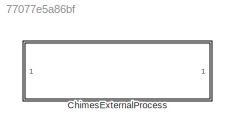
MODEL slx_77077e5a86bf
KIND library
CONFIG AbsTol = auto
CONFIG EnableMultiTasking = off
CONFIG FixedStep = auto
CONFIG MaxStep = auto
CONFIG MinStep = auto
CONFIG RelTol = 1e-3
CONFIG SampleTimeConstraint = Unconstrained
CONFIG SolverName = VariableStepAuto
CONFIG StartTime = 0.0
CONFIG StopTime = 10.0
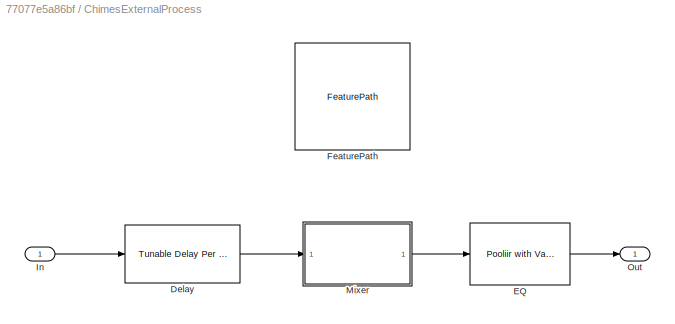
BLOCK [SubSystem] ChimesExternalProcess
BLOCK [Reference] ChimesExternalProcess/Delay  REF=TunableDelay/Tunable Delay Per Channel
  SourceBlock = TunableDelay/Tunable Delay Per Channel
  SourceType = Tunable Delay
BLOCK [Reference] ChimesExternalProcess/EQ  REF=PooliirAccel/Pooliir with Variants
  SourceBlock = PooliirAccel/Pooliir with Variants
  SourceType = Bose Pool IIR
BLOCK [Reference] ChimesExternalProcess/FeaturePath  REF=FeaturePath/FeaturePath
  SourceBlock = FeaturePath/FeaturePath
  SourceType = Bose Feature Path
BLOCK [Inport] ChimesExternalProcess/In
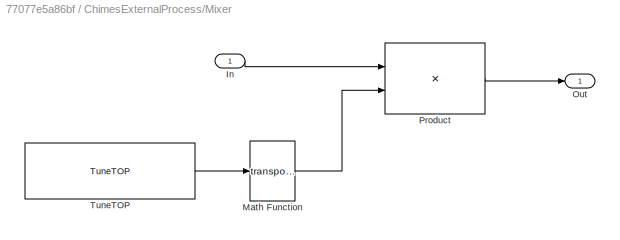
BLOCK [SubSystem] ChimesExternalProcess/Mixer
BLOCK [Inport] ChimesExternalProcess/Mixer/In
BLOCK [Math] ChimesExternalProcess/Mixer/Math Function
  Operator = transpose
  SignedPower = on
BLOCK [Outport] ChimesExternalProcess/Mixer/Out
BLOCK [Product] ChimesExternalProcess/Mixer/Product
  Multiplication = Matrix(*)
BLOCK [Reference] ChimesExternalProcess/Mixer/TuneTOP  REF=TuneVar/TuneTOP
  SourceBlock = TuneVar/TuneTOP
  SourceType = Bose Trivial Tune TOP
BLOCK [Outport] ChimesExternalProcess/Out
LINE ChimesExternalProcess/Delay:1 -> ChimesExternalProcess/Mixer:1
LINE ChimesExternalProcess/EQ:1 -> ChimesExternalProcess/Out:1
LINE ChimesExternalProcess/In:1 -> ChimesExternalProcess/Delay:1
LINE ChimesExternalProcess/Mixer/In:1 -> ChimesExternalProcess/Mixer/Product:1
LINE ChimesExternalProcess/Mixer/Math Function:1 -> ChimesExternalProcess/Mixer/Product:2
LINE ChimesExternalProcess/Mixer/Product:1 -> ChimesExternalProcess/Mixer/Out:1
LINE ChimesExternalProcess/Mixer/TuneTOP:1 -> ChimesExternalProcess/Mixer/Math Function:1
LINE ChimesExternalProcess/Mixer:1 -> ChimesExternalProcess/EQ:1
